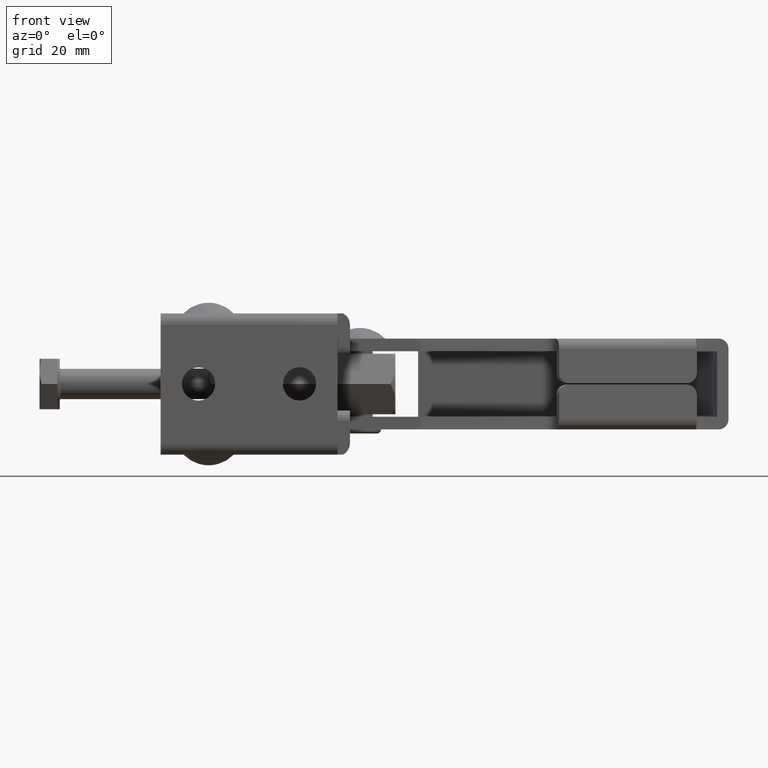
[diagram: clean part render]
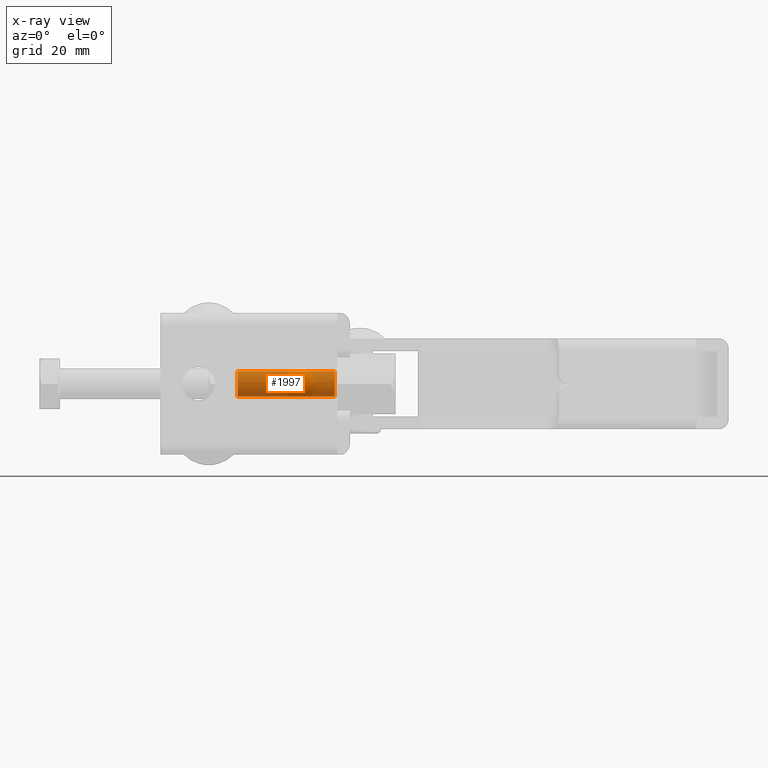
[diagram: x-ray — body ghosted, one internal face saturated and labeled with its STEP entity id]
A machine part, front view, then the same camera in x-ray: the body is ghosted and one INTERNAL B-rep face — a face not visible from any outside direction — is saturated and labeled: STEP entity #1997.
In plain terms, the highlighted cylindrical surface (edge-blend (fillet) strip) has radius 2.5 mm, axis along (-1, 0, 0).
Its self-contained STEP definition (entity closure, byte-faithful):
#139 = DIRECTION ( 'NONE',  ( -1.000000000000000000, 0.0000000000000000000, 0.0000000000000000000 ) ) ;
#166 = DIRECTION ( 'NONE',  ( 0.0000000000000000000, 0.0000000000000000000, 1.000000000000000000 ) ) ;
#295 = ORIENTED_EDGE ( 'NONE', *, *, #3516, .T. ) ;
#906 = CARTESIAN_POINT ( 'NONE',  ( -2.249999999999988000, 22.00000000000000400, -2.499999999999996400 ) ) ;
#1040 = LINE ( 'NONE', #6140, #2517 ) ;
#1158 = CYLINDRICAL_SURFACE ( 'NONE', #2544, 2.500000000000000000 ) ;
#1286 = VERTEX_POINT ( 'NONE', #906 ) ;
#1332 = FACE_OUTER_BOUND ( 'NONE', #2503, .T. ) ;
#1997 = ADVANCED_FACE ( 'NONE', ( #1332 ), #1158, .F. ) ;
#2281 = VERTEX_POINT ( 'NONE', #4251 ) ;
#2350 = DIRECTION ( 'NONE',  ( -1.000000000000000000, 0.0000000000000000000, 0.0000000000000000000 ) ) ;
#2459 = VERTEX_POINT ( 'NONE', #5492 ) ;
#2466 = CARTESIAN_POINT ( 'NONE',  ( -2.249999999999988000, 22.00000000000000400, 3.541791424061227200E-015 ) ) ;
#2503 = EDGE_LOOP ( 'NONE', ( #3584, #295, #3786, #3332 ) ) ;
#2517 = VECTOR ( 'NONE', #139, 1000.000000000000000 ) ;
#2544 = AXIS2_PLACEMENT_3D ( 'NONE', #6938, #2552, #3640 ) ;
#2552 = DIRECTION ( 'NONE',  ( -1.000000000000000000, 0.0000000000000000000, 0.0000000000000000000 ) ) ;
#2574 = EDGE_CURVE ( 'NONE', #2459, #2281, #4083, .T. ) ;
#3009 = AXIS2_PLACEMENT_3D ( 'NONE', #6725, #3437, #166 ) ;
#3024 = DIRECTION ( 'NONE',  ( -5.551115123125782700E-015, 0.0000000000000000000, 1.000000000000000000 ) ) ;
#3106 = EDGE_CURVE ( 'NONE', #2459, #6299, #1040, .T. ) ;
#3188 = LINE ( 'NONE', #5631, #5409 ) ;
#3224 = CARTESIAN_POINT ( 'NONE',  ( -2.250000000000001800, 22.00000000000000400, 2.500000000000003600 ) ) ;
#3332 = ORIENTED_EDGE ( 'NONE', *, *, #3106, .F. ) ;
#3437 = DIRECTION ( 'NONE',  ( 1.000000000000000000, -0.0000000000000000000, -0.0000000000000000000 ) ) ;
#3516 = EDGE_CURVE ( 'NONE', #2281, #1286, #3188, .T. ) ;
#3584 = ORIENTED_EDGE ( 'NONE', *, *, #2574, .T. ) ;
#3640 = DIRECTION ( 'NONE',  ( 0.0000000000000000000, 0.0000000000000000000, 1.000000000000000000 ) ) ;
#3786 = ORIENTED_EDGE ( 'NONE', *, *, #7052, .F. ) ;
#4083 = CIRCLE ( 'NONE', #3009, 2.500000000000000000 ) ;
#4161 = AXIS2_PLACEMENT_3D ( 'NONE', #2466, #6300, #3024 ) ;
#4251 = CARTESIAN_POINT ( 'NONE',  ( 16.99999999999999600, 22.00000000000000400, -2.499999999999996400 ) ) ;
#5409 = VECTOR ( 'NONE', #2350, 1000.000000000000000 ) ;
#5492 = CARTESIAN_POINT ( 'NONE',  ( 16.99999999999999600, 22.00000000000000400, 2.500000000000003600 ) ) ;
#5631 = CARTESIAN_POINT ( 'NONE',  ( 16.99999999999999600, 22.00000000000000400, -2.499999999999996400 ) ) ;
#5694 = CIRCLE ( 'NONE', #4161, 2.500000000000000000 ) ;
#6140 = CARTESIAN_POINT ( 'NONE',  ( 16.99999999999999600, 22.00000000000000400, 2.500000000000003600 ) ) ;
#6299 = VERTEX_POINT ( 'NONE', #3224 ) ;
#6300 = DIRECTION ( 'NONE',  ( 1.000000000000000000, -0.0000000000000000000, -0.0000000000000000000 ) ) ;
#6725 = CARTESIAN_POINT ( 'NONE',  ( 16.99999999999999600, 22.00000000000000400, 3.541791424061227200E-015 ) ) ;
#6938 = CARTESIAN_POINT ( 'NONE',  ( 16.99999999999999600, 22.00000000000000400, 3.541791424061227200E-015 ) ) ;
#7052 = EDGE_CURVE ( 'NONE', #6299, #1286, #5694, .T. ) ;